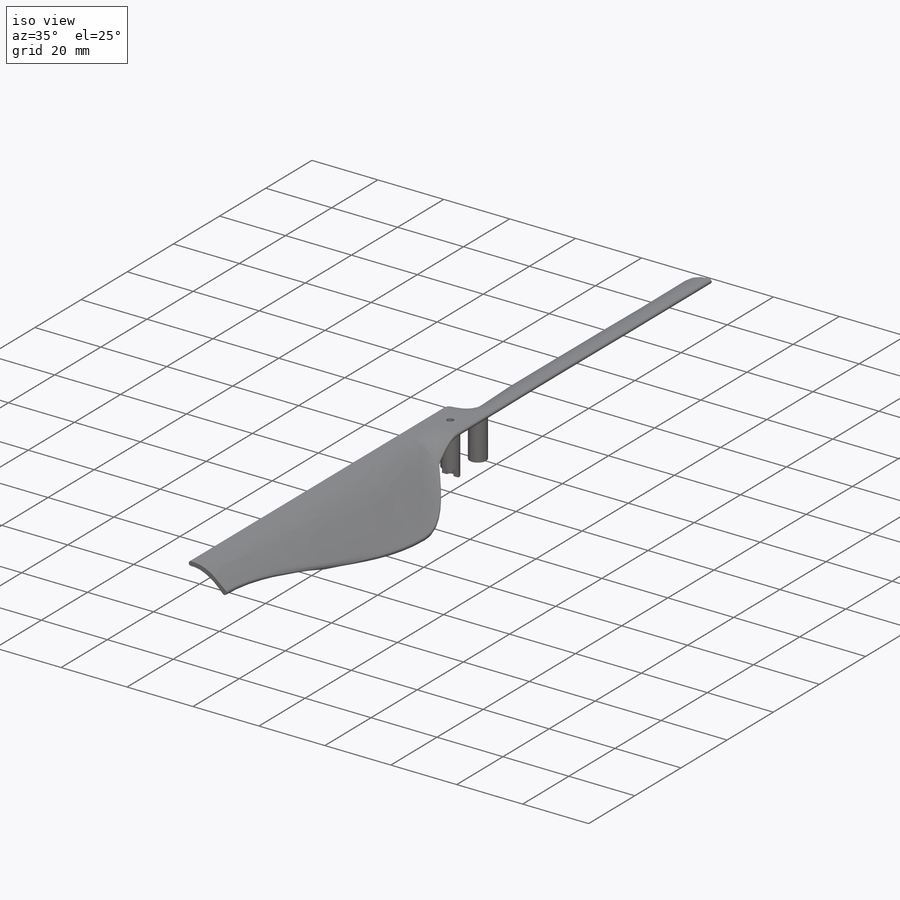
[diagram: iso view]
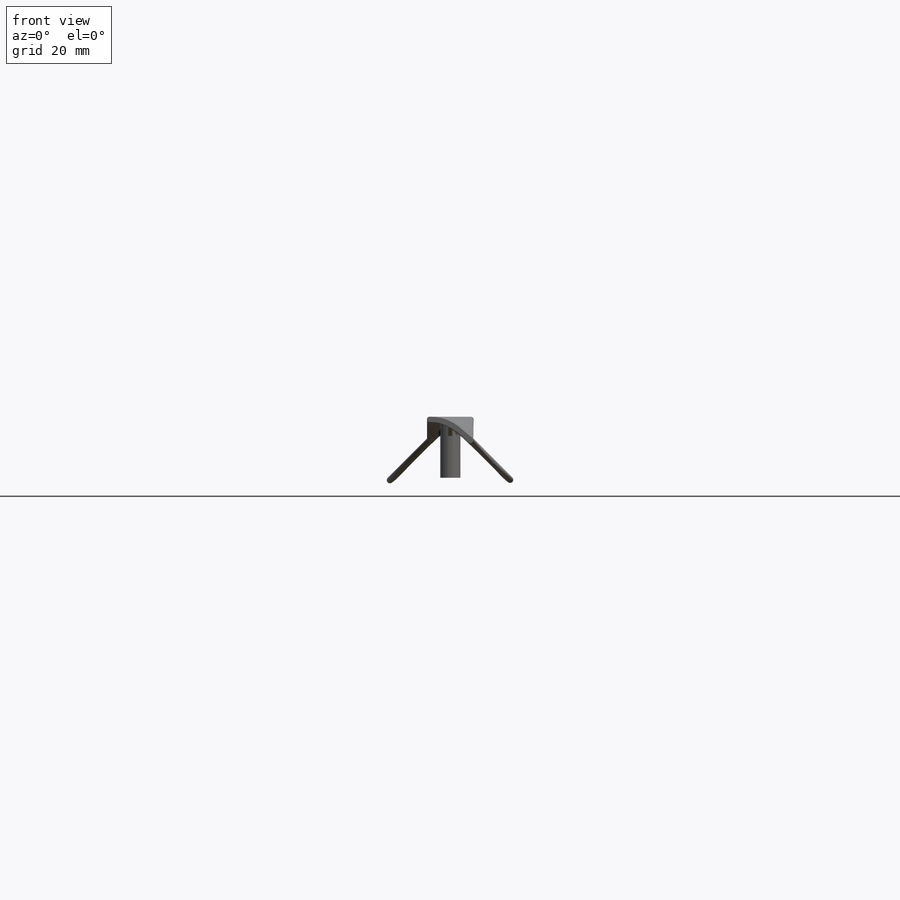
[diagram: front view]
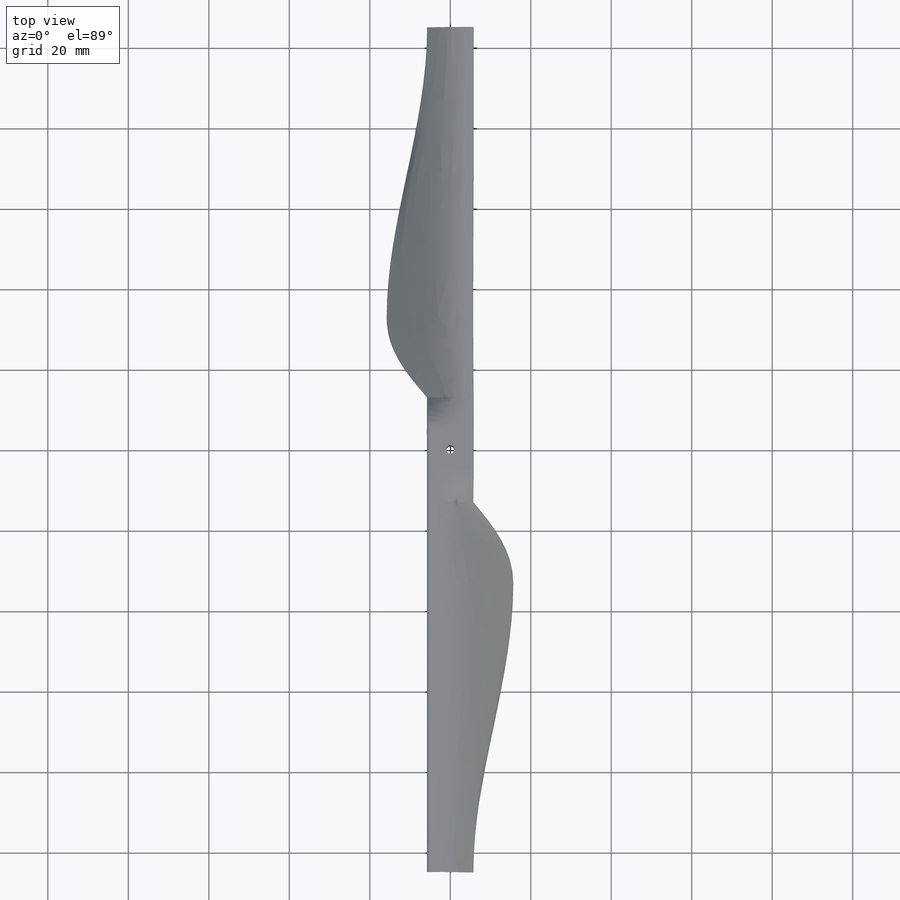
[diagram: top view]
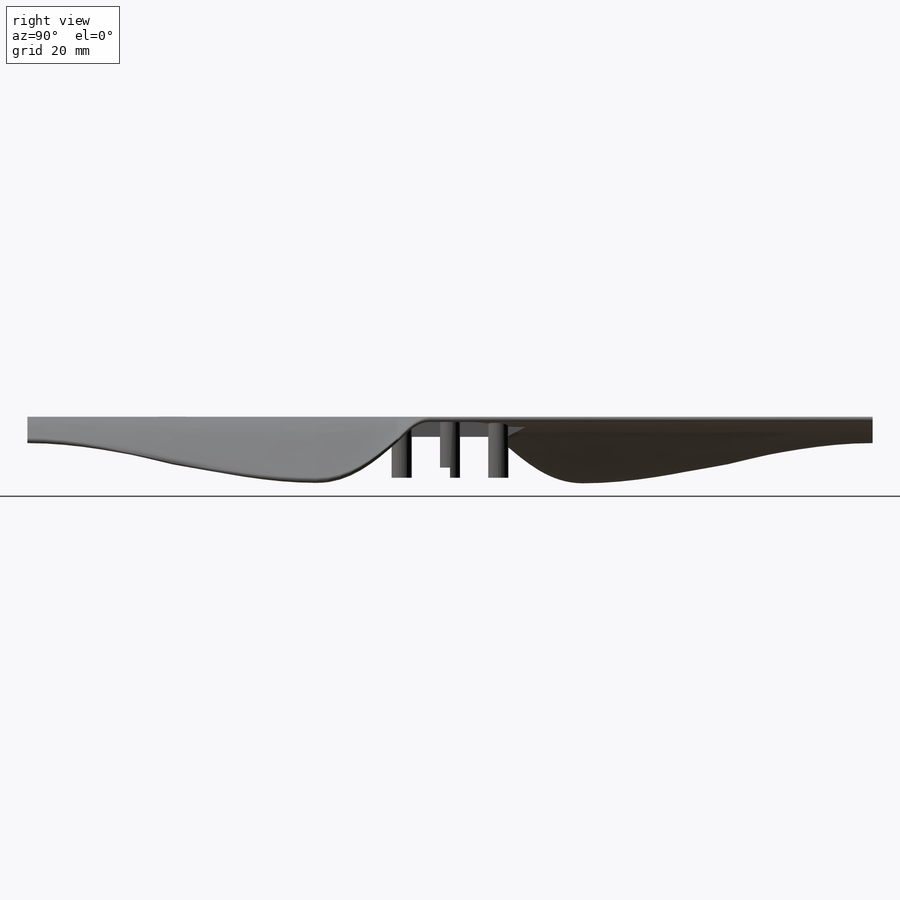
[diagram: right view]
SOLIDWORKS PART (.sldprt)
format: sldprt  version: not decoded by parser v0  size: 723,968 bytes
history: native  units: mm
features: sketch x23, plane x12, extrude x9, mirror x3, cut_extrude x2, material x1 (+8 scaffold rows collapsed)
feature tree (58):
  scaffold x8  (default folders/planes/origin — collapsed)
  material  "ABS PC"
  plane  "Plan de face"
  plane  "Plan de dessus"
  plane  "Plan de droite"
  sketch  "Esquisse1"  dims[D2=0.65mm D1=10.3mm]
  plane  "Plan1"  Offset=13mm
  sketch  "Esquisse2"  dims[c1.D1=0.65mm c1.D2=0.65mm c1.D3=~5.709238mm c1.D5=~5.043579mm c1.D4=1.3mm c2.D5=5.0mm]
  extrude  "Extrusion1"  Depth=10mm
  sketch  "Esquisse3"  dims[D1=0.65mm D2=10.3mm]
  plane  "Plan2"  Offset=20mm
  sketch  "Esquisse4"  dims[D3=0.8mm D1=20.0mm D2=15.0mm]
  extrude  "Lissage3"  [1 undecoded]
  sketch  "Esquisse2<4>"
  plane  "Plan3"  Offset=72mm
  sketch  "Esquisse5"
  plane  "Plan4"  Offset=36mm
  sketch  "Esquisse6"  dims[c1.D2=1.0mm c1.D1=15.0mm c2.D2=~19.225665mm]
  extrude  "Lissage4"  [1 undecoded]
  sketch  "Esquisse4<4>"
  extrude  "Lissage5"  [1 undecoded]
  sketch  "Esquisse6<3>"
  plane  "Plan5"  Offset=14.5mm
  sketch  "Esquisse10"  dims[D1=0.65mm]
  plane  "Plan7"  Offset=13mm
  sketch  "Esquisse12"  dims[c1.D1=0.65mm c1.D2=0.65mm c1.D3=~5.709238mm c1.D5=~5.043579mm c1.D4=1.3mm c2.D5=5.0mm]
  extrude  "Lissage6"  [1 undecoded]
  plane  "Plan8"  Offset=20mm
  sketch  "Esquisse14"  dims[D3=0.8mm D1=20.0mm D2=15.0mm]
  extrude  "Lissage7"  [1 undecoded]
  sketch  "Esquisse12<6>"
  plane  "Plan9"  Offset=36mm
  sketch  "Esquisse15"  dims[c1.D2=1.0mm c1.D1=15.0mm c2.D2=~19.225665mm]
  extrude  "Lissage8"  [1 undecoded]
  sketch  "Esquisse14<6>"
  plane  "Plan10"  Offset=36mm
  sketch  "Esquisse16"
  extrude  "Lissage9"  [1 undecoded]
  sketch  "Esquisse15<5>"
  sketch  "Esquisse7"  dims[D1=5.0mm D3=2.5mm D4=5.0mm D2=12.0mm D5=12.0mm]
  extrude  "Extrusion2"  [1 undecoded]
  sketch  "Esquisse8"  dims[c1.D1=5.0mm c2.D1=1.0mm]
  sketch  "Esquisse9"
  mirror  "Symétrie2"
  mirror  "Nervure3"
  sketch  "Esquisse17"
  mirror  "Nervure6"
  sketch  "Esquisse18"  dims[D1=2.0mm]
  cut_extrude  "Extrusion3"  [1 undecoded]
  sketch  "Esquisse19"
  cut_extrude  "Extrusion4"  Depth=2.5mm
decode coverage: 14 of 37 modeling features carry decoded parameters
note: ~ marks probable driven/reference dimensions
note: 9 parameter values undecoded
summary: no parameter record found for 9 features
note: suppression state not decoded; provenance and decode notes live in map.json
